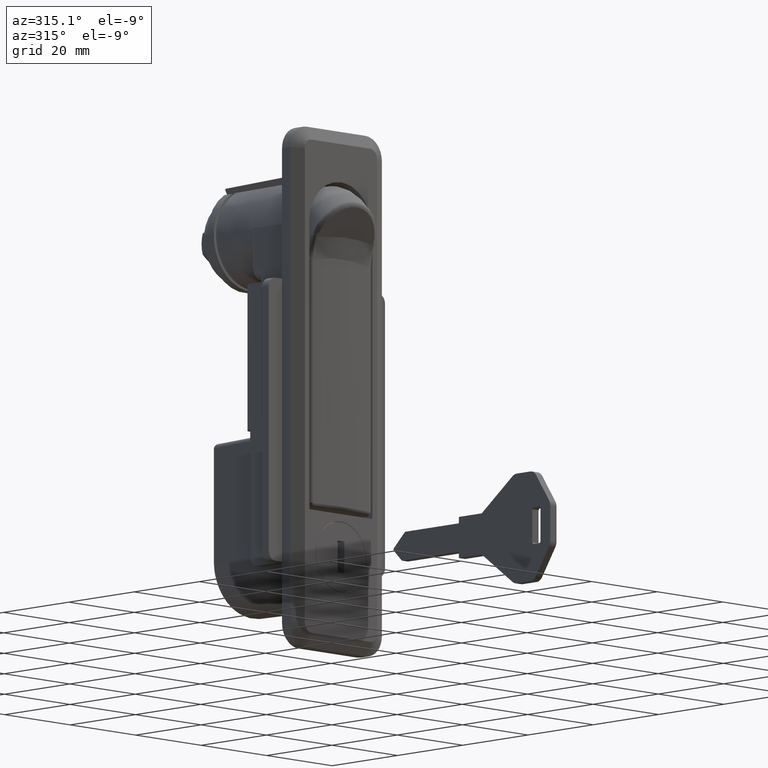
[diagram: clean part render]
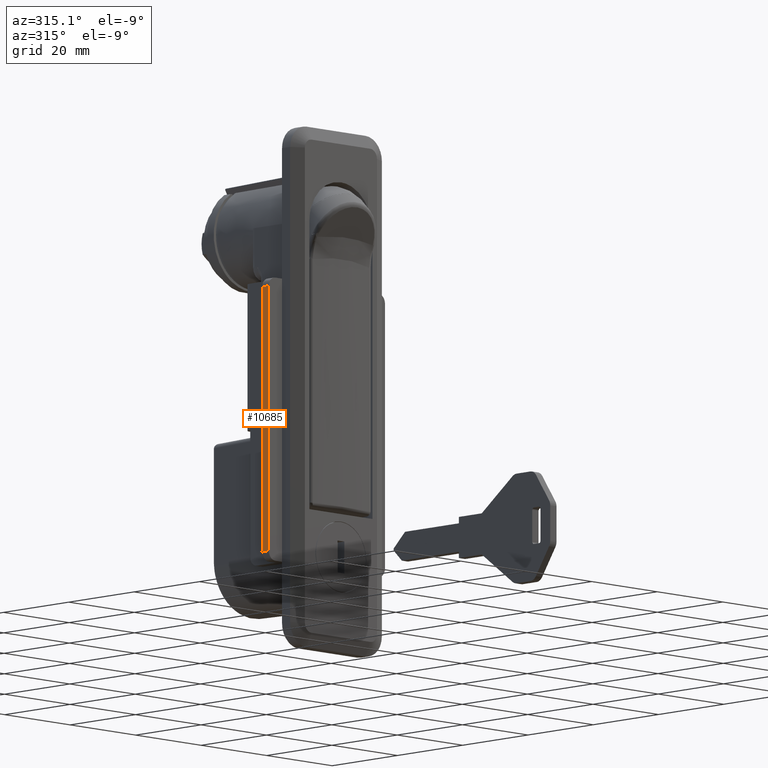
[diagram: same view with one face highlighted and labeled with its STEP entity id]
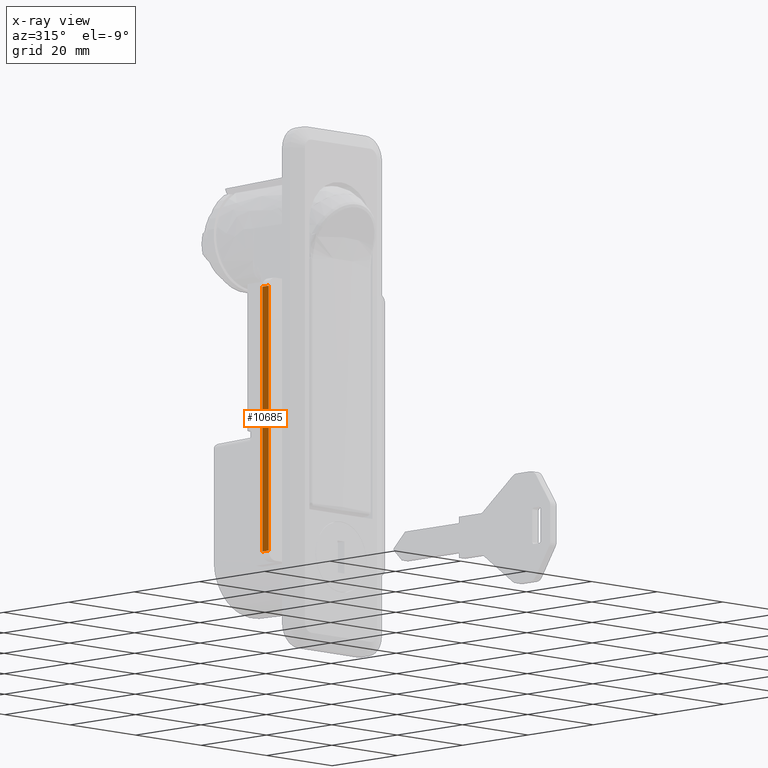
[diagram: x-ray of the same camera — body ghosted, the highlighted face saturated]
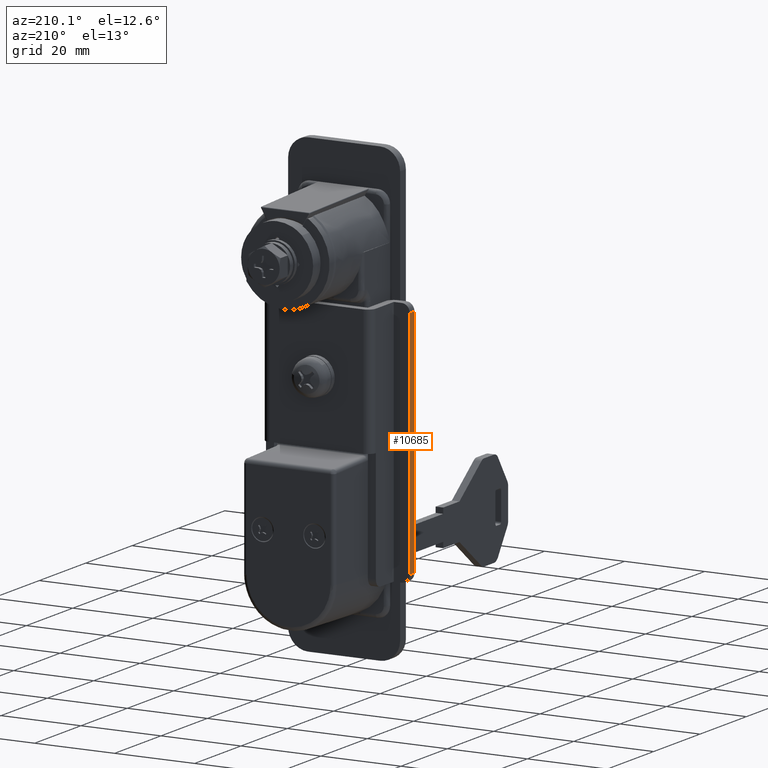
[diagram: same view with one face highlighted and labeled with its STEP entity id]
A machine part, auxiliary view. The second image highlights one B-rep face of the part: STEP entity #10685.
The next image is the same camera in x-ray: the body ghosted, the highlighted face saturated — about 0% of this face is hidden behind the body in this view.
A second angle (auxiliary view) of the same face is appended — the face is thin or edge-on in the first view.
In plain terms, the highlighted face is a freeform B-spline surface patch.
Its self-contained STEP definition (entity closure, byte-faithful):
#10615=CARTESIAN_POINT('',(-17.749600000000001,3.299994665527350,-72.500000000000000));
#10616=VERTEX_POINT('',#10615);
#10636=CARTESIAN_POINT('',(-17.749600000000001,1.299994665527336,-72.500000000000000));
#10637=VERTEX_POINT('',#10636);
#10650=CARTESIAN_POINT('',(-17.749600000000001,3.299994665527350,-72.500000000000000));
#10651=CARTESIAN_POINT('',(-17.749600000000001,1.299994665527336,-72.500000000000000));
#10652=QUASI_UNIFORM_CURVE('',1,(#10650,#10651),.UNSPECIFIED.,.F.,.U.);
#10653=EDGE_CURVE('',#10616,#10637,#10652,.T.);
#10658=CARTESIAN_POINT('',(-17.749600000000001,1.200094669403711,-75.397099887584744));
#10659=CARTESIAN_POINT('',(-17.749600000000001,1.200094669403711,-11.602898556734029));
#10660=CARTESIAN_POINT('',(-17.749600000000001,3.399894715295147,-75.397099887584744));
#10661=CARTESIAN_POINT('',(-17.749600000000001,3.399894715295147,-11.602898556734029));
#10662=B_SPLINE_SURFACE_WITH_KNOTS('',1,1,((#10658,#10660),(#10659,#10661)),.UNSPECIFIED.,.F.,.F.,.U.,(2,2),(2,2),(0.0,63.794201330850719),(0.0,2.199800045891436),.UNSPECIFIED.);
#10663=CARTESIAN_POINT('',(-17.749600000000001,3.299994665527350,-14.500000000000000));
#10664=VERTEX_POINT('',#10663);
#10665=CARTESIAN_POINT('',(-17.749600000000001,3.299994665527350,-72.500000000000000));
#10666=CARTESIAN_POINT('',(-17.749600000000001,3.299994665527350,-14.500000000000000));
#10667=QUASI_UNIFORM_CURVE('',1,(#10665,#10666),.UNSPECIFIED.,.F.,.U.);
#10668=EDGE_CURVE('',#10616,#10664,#10667,.T.);
#10669=ORIENTED_EDGE('',*,*,#10668,.F.);
#10670=ORIENTED_EDGE('',*,*,#10653,.T.);
#10671=CARTESIAN_POINT('',(-17.749600000000001,1.299994665527336,-14.500000000000000));
#10672=VERTEX_POINT('',#10671);
#10673=CARTESIAN_POINT('',(-17.749600000000001,1.299994665527336,-72.500000000000000));
#10674=CARTESIAN_POINT('',(-17.749600000000001,1.299994665527336,-14.500000000000000));
#10675=QUASI_UNIFORM_CURVE('',1,(#10673,#10674),.UNSPECIFIED.,.F.,.U.);
#10676=EDGE_CURVE('',#10637,#10672,#10675,.T.);
#10677=ORIENTED_EDGE('',*,*,#10676,.T.);
#10678=CARTESIAN_POINT('',(-17.749600000000001,1.299994665527336,-14.500000000000000));
#10679=CARTESIAN_POINT('',(-17.749600000000001,3.299994665527350,-14.500000000000000));
#10680=QUASI_UNIFORM_CURVE('',1,(#10678,#10679),.UNSPECIFIED.,.F.,.U.);
#10681=EDGE_CURVE('',#10672,#10664,#10680,.T.);
#10682=ORIENTED_EDGE('',*,*,#10681,.T.);
#10683=EDGE_LOOP('',(#10669,#10670,#10677,#10682));
#10684=FACE_OUTER_BOUND('',#10683,.T.);
#10685=ADVANCED_FACE('',(#10684),#10662,.T.);